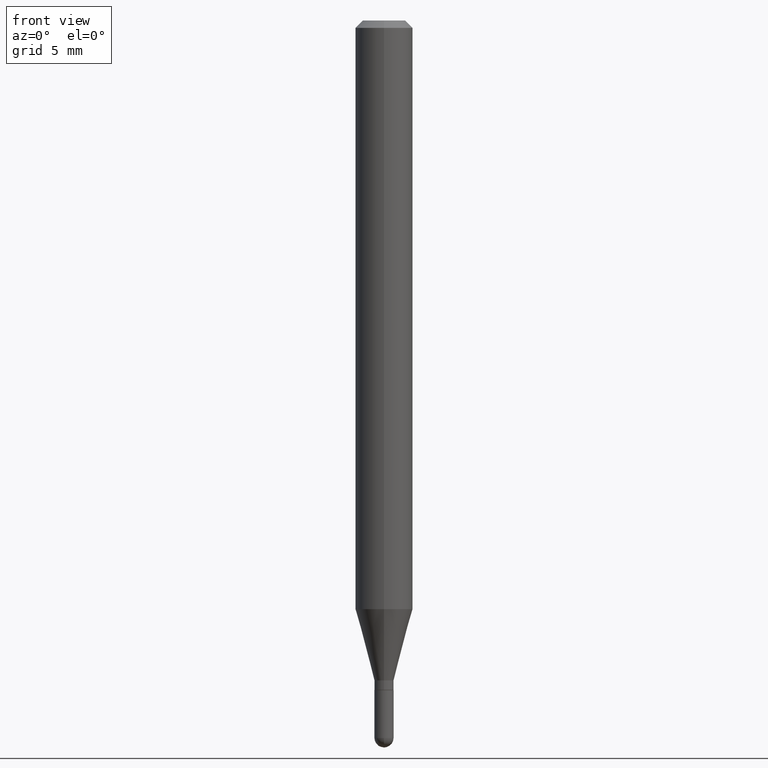
[diagram: clean part render]
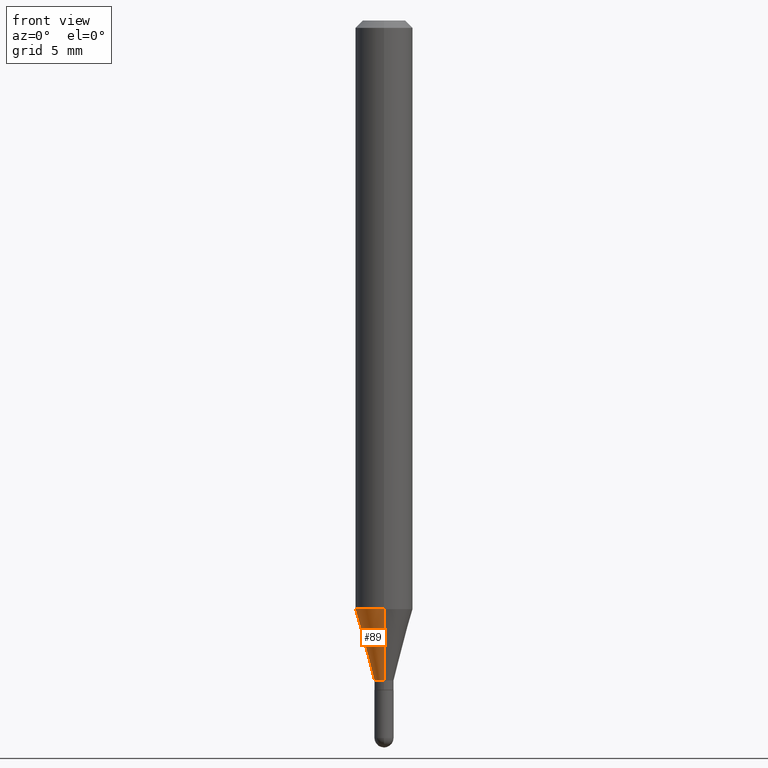
[diagram: same view with one face highlighted and labeled with its STEP entity id]
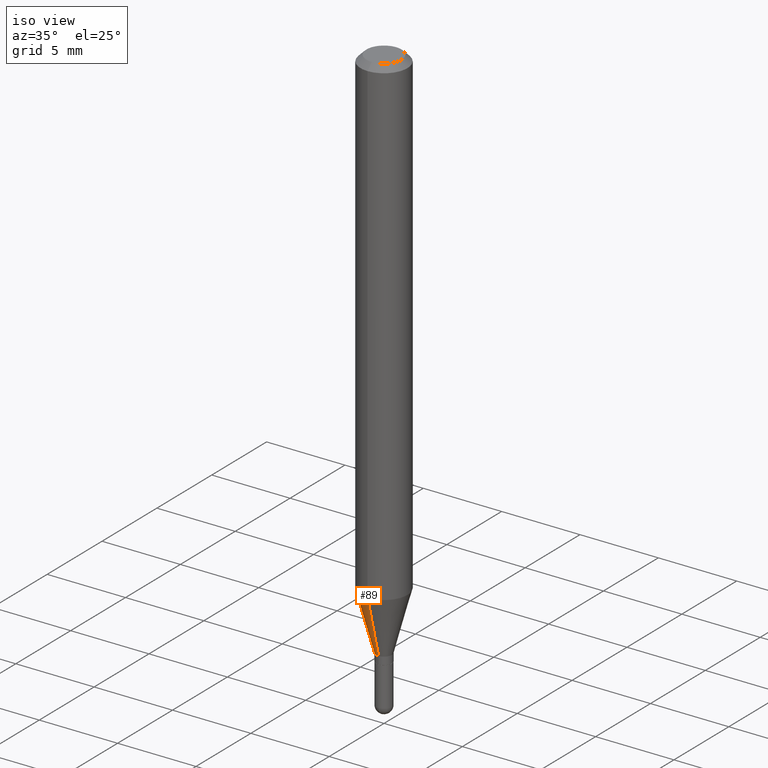
[diagram: same view with one face highlighted and labeled with its STEP entity id]
A machine part, front view. The second image highlights one B-rep face of the part: STEP entity #89.
A second angle (iso view) of the same face is appended — the face is thin or edge-on in the first view.
In plain terms, the highlighted conical surface has half-angle 15 deg.
Its self-contained STEP definition (entity closure, byte-faithful):
#8 = VERTEX_POINT ( 'NONE', #322 ) ;
#19 = DIRECTION ( 'NONE',  ( -6.982962677686265922E-15, -1.000000000000000000, 4.626330217890369336E-15 ) ) ;
#40 = CIRCLE ( 'NONE', #440, 0.01969999999999964488 ) ;
#67 = AXIS2_PLACEMENT_3D ( 'NONE', #277, #509, #318 ) ;
#89 = ADVANCED_FACE ( 'NONE', ( #399 ), #150, .T. ) ;
#106 = ORIENTED_EDGE ( 'NONE', *, *, #210, .T. ) ;
#120 = EDGE_CURVE ( 'NONE', #507, #8, #40, .T. ) ;
#127 = CIRCLE ( 'NONE', #260, 0.05904999999999999832 ) ;
#150 = CONICAL_SURFACE ( 'NONE', #67, 0.01969999999999964488, 0.2617993877991500740 ) ;
#159 = CARTESIAN_POINT ( 'NONE',  ( -4.123439461173446476E-16, -0.05905000000000424493, -1.211243800722163089 ) ) ;
#206 = EDGE_CURVE ( 'NONE', #507, #495, #207, .T. ) ;
#207 = LINE ( 'NONE', #413, #291 ) ;
#209 = ORIENTED_EDGE ( 'NONE', *, *, #380, .F. ) ;
#210 = EDGE_CURVE ( 'NONE', #8, #501, #484, .T. ) ;
#214 = CARTESIAN_POINT ( 'NONE',  ( -1.375643647503837403E-16, -0.01970000000000438414, -1.358099999999999641 ) ) ;
#244 = DIRECTION ( 'NONE',  ( -2.445625033905502397E-29, 3.491257611855651995E-15, 1.000000000000000000 ) ) ;
#260 = AXIS2_PLACEMENT_3D ( 'NONE', #500, #422, #19 ) ;
#271 = VECTOR ( 'NONE', #376, 39.37007874015748854 ) ;
#277 = CARTESIAN_POINT ( 'NONE',  ( 3.321403358547062397E-29, -4.741476962661159590E-15, -1.358099999999999641 ) ) ;
#290 = DIRECTION ( 'NONE',  ( 1.839019923739598738E-15, 0.2588190451025247363, 0.9659258262890673130 ) ) ;
#291 = VECTOR ( 'NONE', #290, 39.37007874015748854 ) ;
#304 = ORIENTED_EDGE ( 'NONE', *, *, #120, .T. ) ;
#318 = DIRECTION ( 'NONE',  ( -6.982962677686266711E-15, -1.000000000000000000, 0.000000000000000000 ) ) ;
#322 = CARTESIAN_POINT ( 'NONE',  ( -1.375643647503837403E-16, -0.01970000000000438414, -1.358099999999999641 ) ) ;
#332 = EDGE_LOOP ( 'NONE', ( #418, #304, #106, #209 ) ) ;
#376 = DIRECTION ( 'NONE',  ( -1.807323732225328562E-15, -0.2588190451025179639, 0.9659258262890690894 ) ) ;
#380 = EDGE_CURVE ( 'NONE', #495, #501, #127, .T. ) ;
#393 = CARTESIAN_POINT ( 'NONE',  ( 2.797762022055696241E-16, 0.01969999999999490214, -1.358099999999999641 ) ) ;
#399 = FACE_OUTER_BOUND ( 'NONE', #332, .T. ) ;
#413 = CARTESIAN_POINT ( 'NONE',  ( 1.399769189447703701E-16, 0.01969999999999490214, -1.358099999999999641 ) ) ;
#418 = ORIENTED_EDGE ( 'NONE', *, *, #206, .F. ) ;
#422 = DIRECTION ( 'NONE',  ( -2.445625033905502397E-29, 3.491257611855651995E-15, 1.000000000000000000 ) ) ;
#440 = AXIS2_PLACEMENT_3D ( 'NONE', #471, #244, #476 ) ;
#471 = CARTESIAN_POINT ( 'NONE',  ( 3.321403358547062397E-29, -4.741476962661159590E-15, -1.358099999999999641 ) ) ;
#473 = CARTESIAN_POINT ( 'NONE',  ( 4.195754854663685822E-16, 0.05904999999999575866, -1.211243800722163533 ) ) ;
#476 = DIRECTION ( 'NONE',  ( -6.982962677686266711E-15, -1.000000000000000000, 0.000000000000000000 ) ) ;
#484 = LINE ( 'NONE', #214, #271 ) ;
#495 = VERTEX_POINT ( 'NONE', #473 ) ;
#500 = CARTESIAN_POINT ( 'NONE',  ( 2.962248161208970335E-29, -4.228764139084222964E-15, -1.211243800722163311 ) ) ;
#501 = VERTEX_POINT ( 'NONE', #159 ) ;
#507 = VERTEX_POINT ( 'NONE', #393 ) ;
#509 = DIRECTION ( 'NONE',  ( -2.445625033905502397E-29, 3.491257611855651995E-15, 1.000000000000000000 ) ) ;